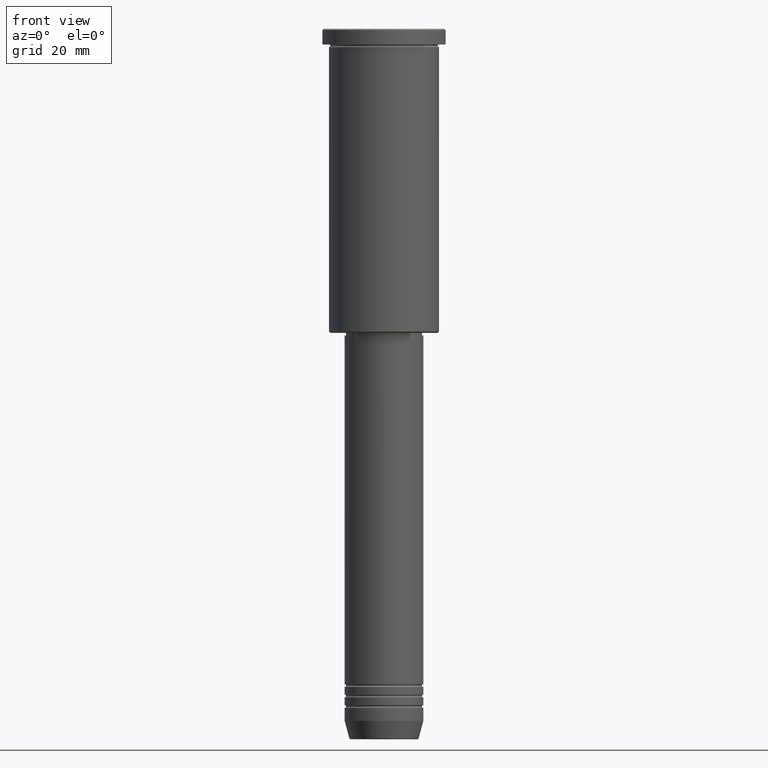
[diagram: clean part render]
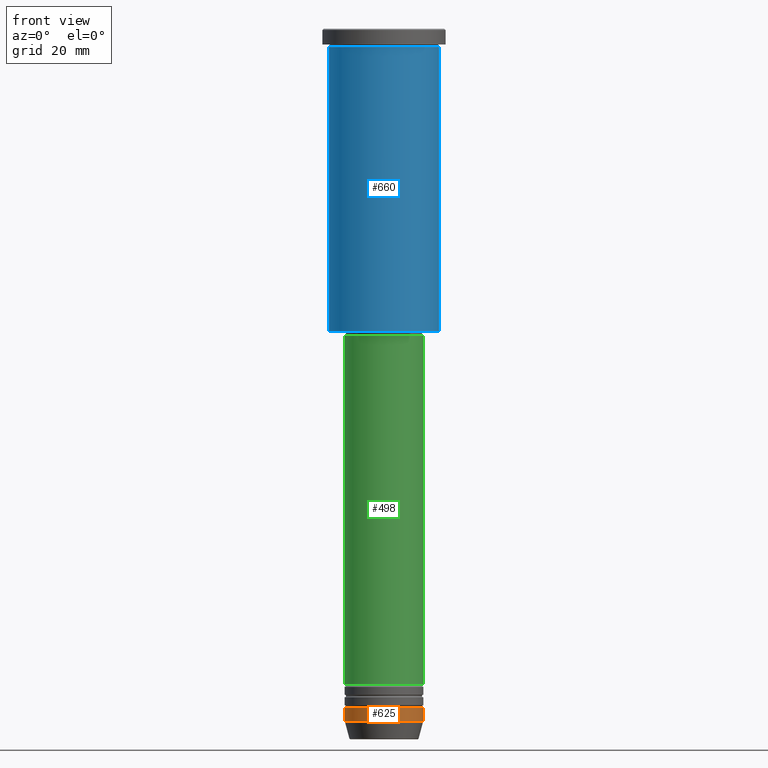
[diagram: same view with three faces highlighted in distinct colors, each labeled with its STEP entity id]
A machine part, front view with three faces highlighted in distinct colors.
Their STEP definitions:

[orange] entity #625 — the highlighted cylindrical surface (partial cylindrical patch) has radius 15 mm, axis along (-0, -0, 1).
#32 = CARTESIAN_POINT ( 'NONE',  ( -15.00000000000000000, 1.836970198721029589E-15, -259.0000000000000000 ) ) ;
#65 = VERTEX_POINT ( 'NONE', #889 ) ;
#79 = CIRCLE ( 'NONE', #263, 15.00000000000000000 ) ;
#223 = DIRECTION ( 'NONE',  ( 1.000000000000000000, 0.000000000000000000, 0.000000000000000000 ) ) ;
#233 = ORIENTED_EDGE ( 'NONE', *, *, #614, .T. ) ;
#236 = ORIENTED_EDGE ( 'NONE', *, *, #485, .F. ) ;
#263 = AXIS2_PLACEMENT_3D ( 'NONE', #624, #737, #1183 ) ;
#325 = DIRECTION ( 'NONE',  ( -0.000000000000000000, -0.000000000000000000, 1.000000000000000000 ) ) ;
#334 = VERTEX_POINT ( 'NONE', #32 ) ;
#393 = VERTEX_POINT ( 'NONE', #1059 ) ;
#423 = VERTEX_POINT ( 'NONE', #799 ) ;
#468 = EDGE_CURVE ( 'NONE', #65, #334, #713, .T. ) ;
#485 = EDGE_CURVE ( 'NONE', #334, #393, #79, .T. ) ;
#542 = CARTESIAN_POINT ( 'NONE',  ( -15.00000000000000000, 1.836970198721029589E-15, 0.000000000000000000 ) ) ;
#566 = ORIENTED_EDGE ( 'NONE', *, *, #1058, .T. ) ;
#606 = DIRECTION ( 'NONE',  ( 1.000000000000000000, 0.000000000000000000, 0.000000000000000000 ) ) ;
#608 = CARTESIAN_POINT ( 'NONE',  ( 0.000000000000000000, 0.000000000000000000, 0.000000000000000000 ) ) ;
#614 = EDGE_CURVE ( 'NONE', #423, #393, #955, .T. ) ;
#624 = CARTESIAN_POINT ( 'NONE',  ( 0.000000000000000000, 0.000000000000000000, -259.0000000000000000 ) ) ;
#625 = ADVANCED_FACE ( 'NONE', ( #1135 ), #1040, .T. ) ;
#680 = DIRECTION ( 'NONE',  ( -0.000000000000000000, -0.000000000000000000, 1.000000000000000000 ) ) ;
#707 = VECTOR ( 'NONE', #680, 1000.000000000000000 ) ;
#713 = LINE ( 'NONE', #542, #1126 ) ;
#737 = DIRECTION ( 'NONE',  ( -0.000000000000000000, -0.000000000000000000, 1.000000000000000000 ) ) ;
#747 = CIRCLE ( 'NONE', #1047, 15.00000000000000000 ) ;
#770 = CARTESIAN_POINT ( 'NONE',  ( 15.00000000000000000, 0.000000000000000000, 0.000000000000000000 ) ) ;
#785 = CARTESIAN_POINT ( 'NONE',  ( 0.000000000000000000, 0.000000000000000000, -264.0000000000000000 ) ) ;
#799 = CARTESIAN_POINT ( 'NONE',  ( 15.00000000000000000, 0.000000000000000000, -264.0000000000000000 ) ) ;
#801 = AXIS2_PLACEMENT_3D ( 'NONE', #608, #325, #223 ) ;
#873 = EDGE_LOOP ( 'NONE', ( #985, #566, #233, #236 ) ) ;
#889 = CARTESIAN_POINT ( 'NONE',  ( -15.00000000000000000, 1.836970198721029589E-15, -264.0000000000000000 ) ) ;
#955 = LINE ( 'NONE', #770, #707 ) ;
#985 = ORIENTED_EDGE ( 'NONE', *, *, #468, .F. ) ;
#1038 = DIRECTION ( 'NONE',  ( -0.000000000000000000, -0.000000000000000000, 1.000000000000000000 ) ) ;
#1040 = CYLINDRICAL_SURFACE ( 'NONE', #801, 15.00000000000000000 ) ;
#1047 = AXIS2_PLACEMENT_3D ( 'NONE', #785, #1038, #606 ) ;
#1058 = EDGE_CURVE ( 'NONE', #65, #423, #747, .T. ) ;
#1059 = CARTESIAN_POINT ( 'NONE',  ( 15.00000000000000000, 0.000000000000000000, -259.0000000000000000 ) ) ;
#1073 = DIRECTION ( 'NONE',  ( -0.000000000000000000, -0.000000000000000000, 1.000000000000000000 ) ) ;
#1126 = VECTOR ( 'NONE', #1073, 1000.000000000000000 ) ;
#1135 = FACE_OUTER_BOUND ( 'NONE', #873, .T. ) ;
#1183 = DIRECTION ( 'NONE',  ( 1.000000000000000000, 0.000000000000000000, 0.000000000000000000 ) ) ;

[blue] entity #660 — the highlighted cylindrical surface (partial cylindrical patch) has radius 21 mm, axis along (-0, -0, 1).
#14 = EDGE_CURVE ( 'NONE', #754, #905, #852, .T. ) ;
#26 = EDGE_LOOP ( 'NONE', ( #728, #1011, #1051, #824 ) ) ;
#35 = CARTESIAN_POINT ( 'NONE',  ( 0.000000000000000000, 0.000000000000000000, -115.4999999999999574 ) ) ;
#62 = AXIS2_PLACEMENT_3D ( 'NONE', #132, #500, #1139 ) ;
#89 = DIRECTION ( 'NONE',  ( -0.000000000000000000, -0.000000000000000000, 1.000000000000000000 ) ) ;
#132 = CARTESIAN_POINT ( 'NONE',  ( 0.000000000000000000, 0.000000000000000000, 0.000000000000000000 ) ) ;
#157 = CYLINDRICAL_SURFACE ( 'NONE', #62, 21.00000000000000000 ) ;
#209 = AXIS2_PLACEMENT_3D ( 'NONE', #643, #373, #853 ) ;
#210 = VECTOR ( 'NONE', #1069, 1000.000000000000000 ) ;
#327 = CARTESIAN_POINT ( 'NONE',  ( -21.00000000000000000, 2.571758278209441661E-15, 0.000000000000000000 ) ) ;
#373 = DIRECTION ( 'NONE',  ( -0.000000000000000000, -0.000000000000000000, 1.000000000000000000 ) ) ;
#404 = CIRCLE ( 'NONE', #969, 21.00000000000000000 ) ;
#409 = CARTESIAN_POINT ( 'NONE',  ( 21.00000000000000000, 0.000000000000000000, -6.999999999999993783 ) ) ;
#495 = VECTOR ( 'NONE', #89, 1000.000000000000000 ) ;
#500 = DIRECTION ( 'NONE',  ( -0.000000000000000000, -0.000000000000000000, 1.000000000000000000 ) ) ;
#528 = CARTESIAN_POINT ( 'NONE',  ( -21.00000000000000000, 2.571758278209441661E-15, -115.4999999999999574 ) ) ;
#619 = CARTESIAN_POINT ( 'NONE',  ( 21.00000000000000000, 0.000000000000000000, 0.000000000000000000 ) ) ;
#627 = CARTESIAN_POINT ( 'NONE',  ( -21.00000000000000000, 2.571758278209441661E-15, -6.999999999999993783 ) ) ;
#643 = CARTESIAN_POINT ( 'NONE',  ( 0.000000000000000000, 0.000000000000000000, -6.999999999999993783 ) ) ;
#660 = ADVANCED_FACE ( 'NONE', ( #1162 ), #157, .T. ) ;
#728 = ORIENTED_EDGE ( 'NONE', *, *, #14, .F. ) ;
#751 = CARTESIAN_POINT ( 'NONE',  ( 21.00000000000000000, 0.000000000000000000, -115.4999999999999574 ) ) ;
#754 = VERTEX_POINT ( 'NONE', #528 ) ;
#798 = EDGE_CURVE ( 'NONE', #1036, #1168, #994, .T. ) ;
#824 = ORIENTED_EDGE ( 'NONE', *, *, #938, .F. ) ;
#829 = DIRECTION ( 'NONE',  ( -1.000000000000000000, 0.000000000000000000, 0.000000000000000000 ) ) ;
#835 = DIRECTION ( 'NONE',  ( -0.000000000000000000, -0.000000000000000000, 1.000000000000000000 ) ) ;
#852 = LINE ( 'NONE', #327, #210 ) ;
#853 = DIRECTION ( 'NONE',  ( 1.000000000000000000, 0.000000000000000000, 0.000000000000000000 ) ) ;
#905 = VERTEX_POINT ( 'NONE', #627 ) ;
#938 = EDGE_CURVE ( 'NONE', #905, #1168, #951, .T. ) ;
#951 = CIRCLE ( 'NONE', #209, 21.00000000000000000 ) ;
#969 = AXIS2_PLACEMENT_3D ( 'NONE', #35, #835, #829 ) ;
#994 = LINE ( 'NONE', #619, #495 ) ;
#995 = EDGE_CURVE ( 'NONE', #754, #1036, #404, .T. ) ;
#1011 = ORIENTED_EDGE ( 'NONE', *, *, #995, .T. ) ;
#1036 = VERTEX_POINT ( 'NONE', #751 ) ;
#1051 = ORIENTED_EDGE ( 'NONE', *, *, #798, .T. ) ;
#1069 = DIRECTION ( 'NONE',  ( -0.000000000000000000, -0.000000000000000000, 1.000000000000000000 ) ) ;
#1139 = DIRECTION ( 'NONE',  ( 1.000000000000000000, 0.000000000000000000, 0.000000000000000000 ) ) ;
#1162 = FACE_OUTER_BOUND ( 'NONE', #26, .T. ) ;
#1168 = VERTEX_POINT ( 'NONE', #409 ) ;

[green] entity #498 — the highlighted cylindrical surface (partial cylindrical patch) has radius 15 mm, axis along (-0, -0, 1).
#16 = CARTESIAN_POINT ( 'NONE',  ( 0.000000000000000000, 0.000000000000000000, 0.000000000000000000 ) ) ;
#31 = VERTEX_POINT ( 'NONE', #884 ) ;
#61 = VECTOR ( 'NONE', #913, 1000.000000000000000 ) ;
#72 = CARTESIAN_POINT ( 'NONE',  ( 0.000000000000000000, 0.000000000000000000, -249.9999999999999147 ) ) ;
#103 = CARTESIAN_POINT ( 'NONE',  ( 15.00000000000000000, 0.000000000000000000, 0.000000000000000000 ) ) ;
#134 = AXIS2_PLACEMENT_3D ( 'NONE', #16, #1095, #742 ) ;
#139 = VERTEX_POINT ( 'NONE', #920 ) ;
#165 = CYLINDRICAL_SURFACE ( 'NONE', #134, 15.00000000000000000 ) ;
#189 = CIRCLE ( 'NONE', #631, 15.00000000000000000 ) ;
#288 = DIRECTION ( 'NONE',  ( -0.000000000000000000, -0.000000000000000000, 1.000000000000000000 ) ) ;
#294 = ORIENTED_EDGE ( 'NONE', *, *, #579, .F. ) ;
#295 = DIRECTION ( 'NONE',  ( 1.000000000000000000, 0.000000000000000000, 0.000000000000000000 ) ) ;
#372 = ORIENTED_EDGE ( 'NONE', *, *, #691, .T. ) ;
#397 = LINE ( 'NONE', #103, #496 ) ;
#401 = CIRCLE ( 'NONE', #1063, 15.00000000000000000 ) ;
#419 = EDGE_CURVE ( 'NONE', #483, #993, #812, .T. ) ;
#478 = CARTESIAN_POINT ( 'NONE',  ( 0.000000000000000000, 0.000000000000000000, -117.0000000000000426 ) ) ;
#483 = VERTEX_POINT ( 'NONE', #826 ) ;
#496 = VECTOR ( 'NONE', #288, 1000.000000000000000 ) ;
#498 = ADVANCED_FACE ( 'NONE', ( #981 ), #165, .T. ) ;
#579 = EDGE_CURVE ( 'NONE', #993, #139, #401, .T. ) ;
#622 = EDGE_LOOP ( 'NONE', ( #878, #372, #830, #294 ) ) ;
#631 = AXIS2_PLACEMENT_3D ( 'NONE', #72, #686, #863 ) ;
#652 = DIRECTION ( 'NONE',  ( -0.000000000000000000, -0.000000000000000000, 1.000000000000000000 ) ) ;
#686 = DIRECTION ( 'NONE',  ( -0.000000000000000000, -0.000000000000000000, 1.000000000000000000 ) ) ;
#691 = EDGE_CURVE ( 'NONE', #483, #31, #189, .T. ) ;
#742 = DIRECTION ( 'NONE',  ( 1.000000000000000000, 0.000000000000000000, 0.000000000000000000 ) ) ;
#812 = LINE ( 'NONE', #1001, #61 ) ;
#826 = CARTESIAN_POINT ( 'NONE',  ( -15.00000000000000000, 1.836970198721029589E-15, -249.9999999999999147 ) ) ;
#830 = ORIENTED_EDGE ( 'NONE', *, *, #972, .T. ) ;
#863 = DIRECTION ( 'NONE',  ( 1.000000000000000000, 0.000000000000000000, 0.000000000000000000 ) ) ;
#878 = ORIENTED_EDGE ( 'NONE', *, *, #419, .F. ) ;
#884 = CARTESIAN_POINT ( 'NONE',  ( 15.00000000000000000, 0.000000000000000000, -249.9999999999999147 ) ) ;
#913 = DIRECTION ( 'NONE',  ( -0.000000000000000000, -0.000000000000000000, 1.000000000000000000 ) ) ;
#920 = CARTESIAN_POINT ( 'NONE',  ( 15.00000000000000000, 0.000000000000000000, -117.0000000000000426 ) ) ;
#972 = EDGE_CURVE ( 'NONE', #31, #139, #397, .T. ) ;
#981 = FACE_OUTER_BOUND ( 'NONE', #622, .T. ) ;
#993 = VERTEX_POINT ( 'NONE', #1100 ) ;
#1001 = CARTESIAN_POINT ( 'NONE',  ( -15.00000000000000000, 1.836970198721029589E-15, 0.000000000000000000 ) ) ;
#1063 = AXIS2_PLACEMENT_3D ( 'NONE', #478, #652, #295 ) ;
#1095 = DIRECTION ( 'NONE',  ( -0.000000000000000000, -0.000000000000000000, 1.000000000000000000 ) ) ;
#1100 = CARTESIAN_POINT ( 'NONE',  ( -15.00000000000000000, 1.836970198721029589E-15, -117.0000000000000426 ) ) ;